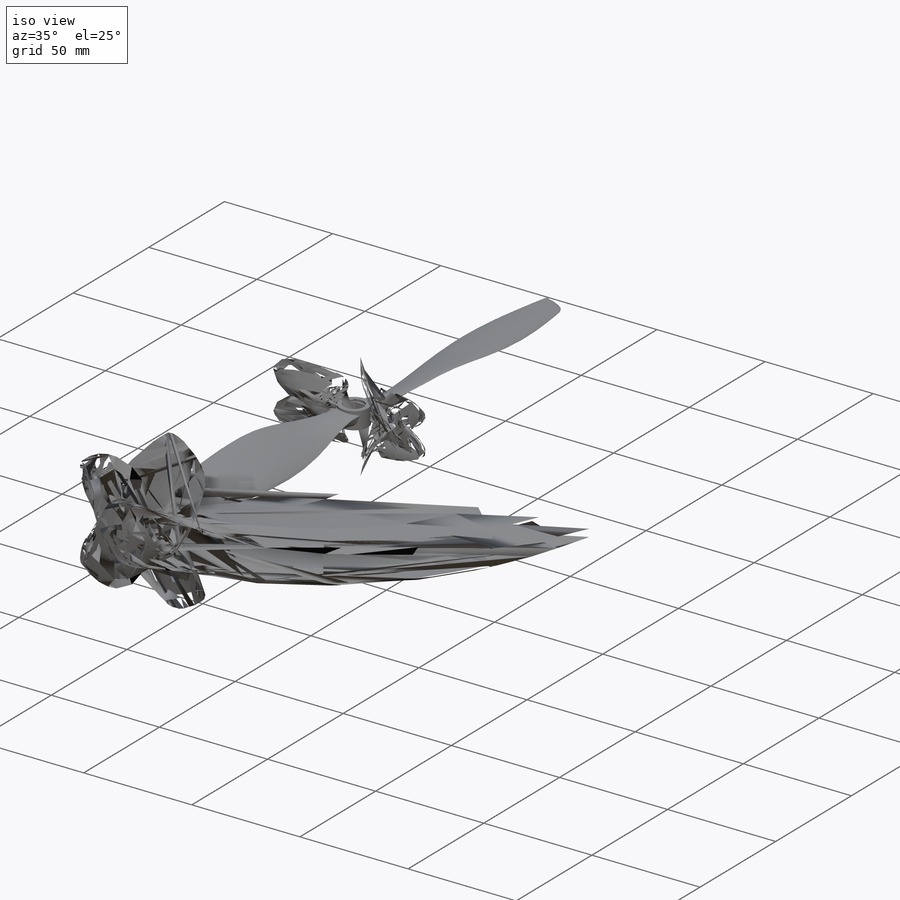
[diagram: iso view]
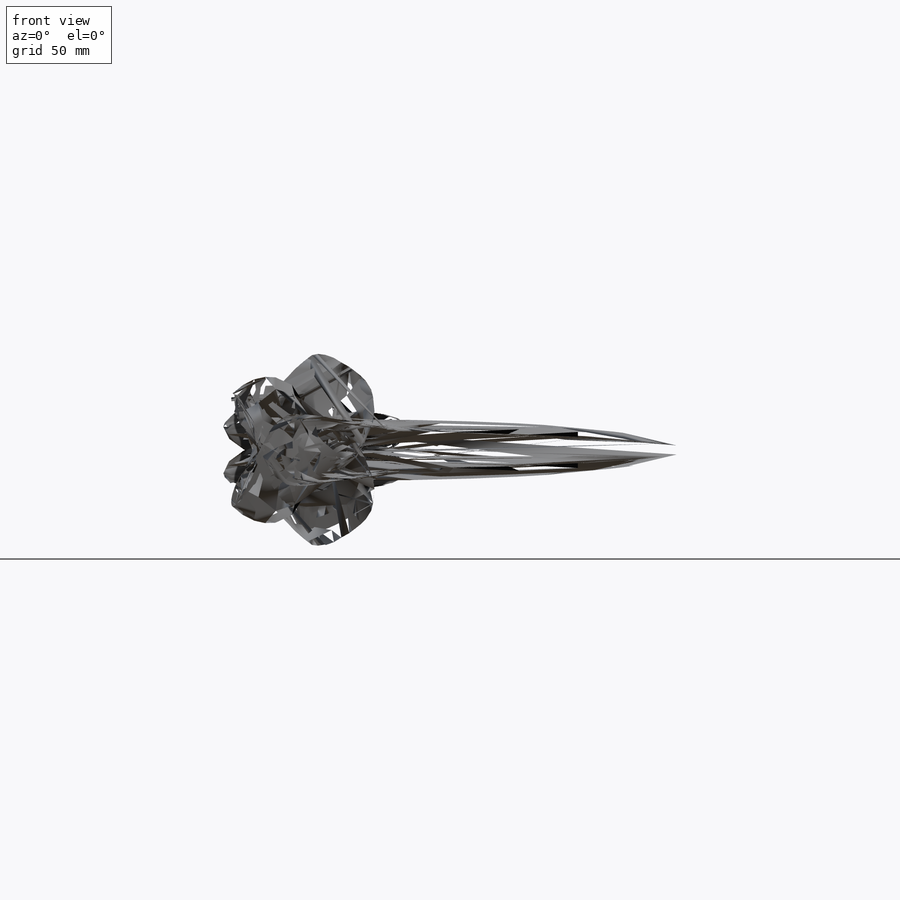
[diagram: front view]
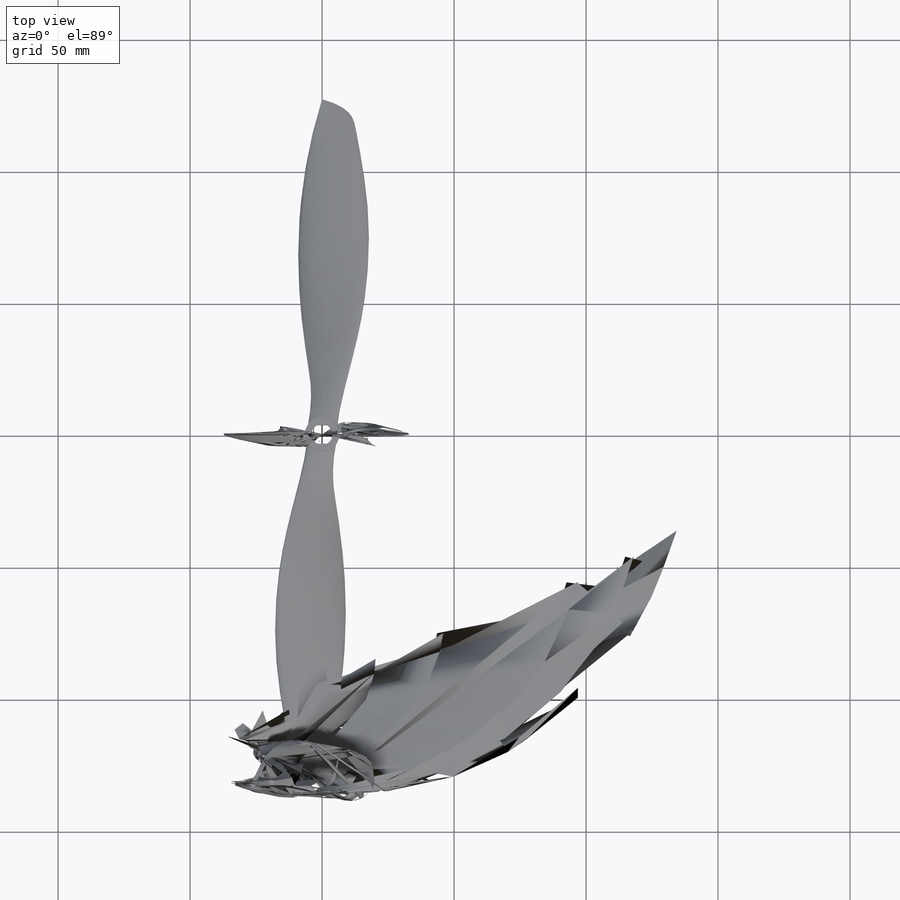
[diagram: top view]
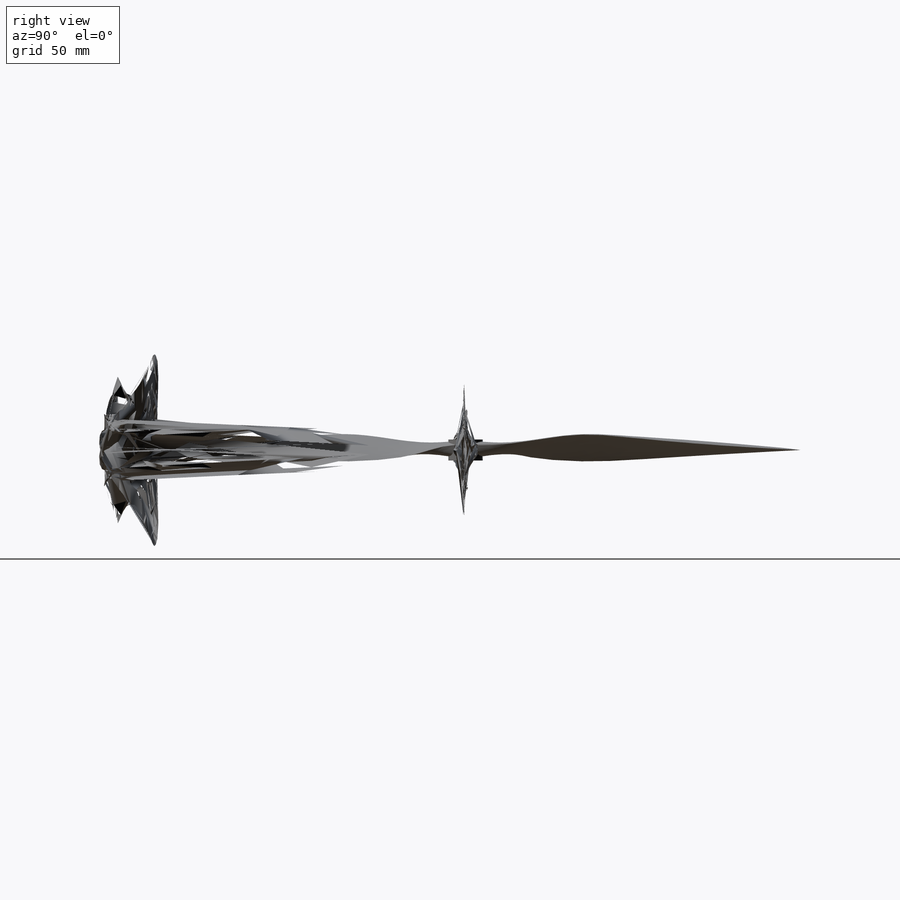
[diagram: right view]
SOLIDWORKS PART (.sldprt)
format: sldprt  version: not decoded by parser v0  size: 457,728 bytes
history: native  units: mm
features: sketch x12, plane x5, cut_extrude x4, material x1, extrude x1, pattern_circular x1 (+13 scaffold rows collapsed)
feature tree (37):
  scaffold x13  (default folders/planes/origin — collapsed)
  material  "ABS"
  sketch  "Sketch1"  dims[D1=13.0mm]
  extrude  "Boss-Extrude1"  Depth=8mm
  sketch  "Sketch3"  dims[c1.D1=254.0mm c1.D4=~38.503174mm c1.D5=~11.83596mm c1.D2=6.5mm c2.D2=75.0deg c2.D3=15.5mm c2.D4=9.0mm c2.D5=0.5mm]
  sketch  "Sketch4"  dims[D1=2.0mm]
  sketch  "Sketch5"
  sketch  "Sketch6"  dims[D1=2.0mm]
  plane  "Plane1"
  plane  "Plane2"  Offset=25.4mm
  plane  "Plane3"  Offset=50.8mm
  plane  "Plane4"  Offset=76.2mm
  plane  "Plane5"  Offset=120mm
  sketch  "Sketch7"  dims[D1=0.5mm D2=0.5mm]
  sketch  "Sketch8"
  sketch  "Sketch9"
  pattern_circular  "CirPattern1"  Count=2 Angle=180deg
  sketch  "Sketch10"  dims[D1=2.0mm]
  cut_extrude  "Cut-Extrude1"  [1 undecoded]
  sketch  "Sketch13"  dims[D1=~0.086377mm D2=7.0mm]
  cut_extrude  "Cut-Extrude4"  [1 undecoded]
  sketch  "Sketch11"  dims[D1=9.0mm]
  cut_extrude  "Cut-Extrude2"  Depth=1mm
  sketch  "Sketch12"  dims[D1=9.0mm]
  cut_extrude  "Cut-Extrude3"  Depth=1mm
decode coverage: 13 of 18 modeling features carry decoded parameters
note: ~ marks probable driven/reference dimensions
note: 2 parameter values undecoded
note: suppression state not decoded; provenance and decode notes live in map.json
